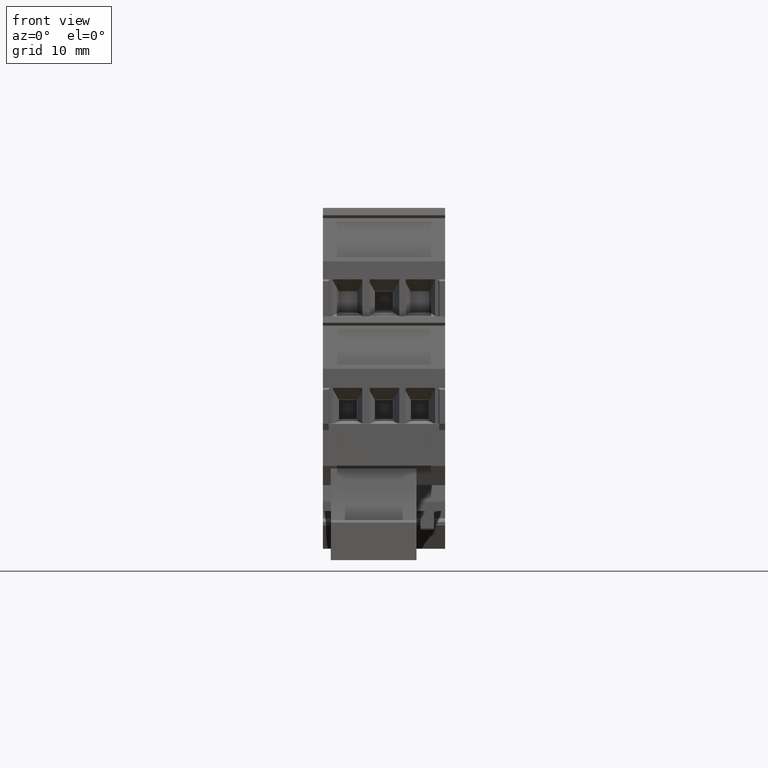
[diagram: clean part render]
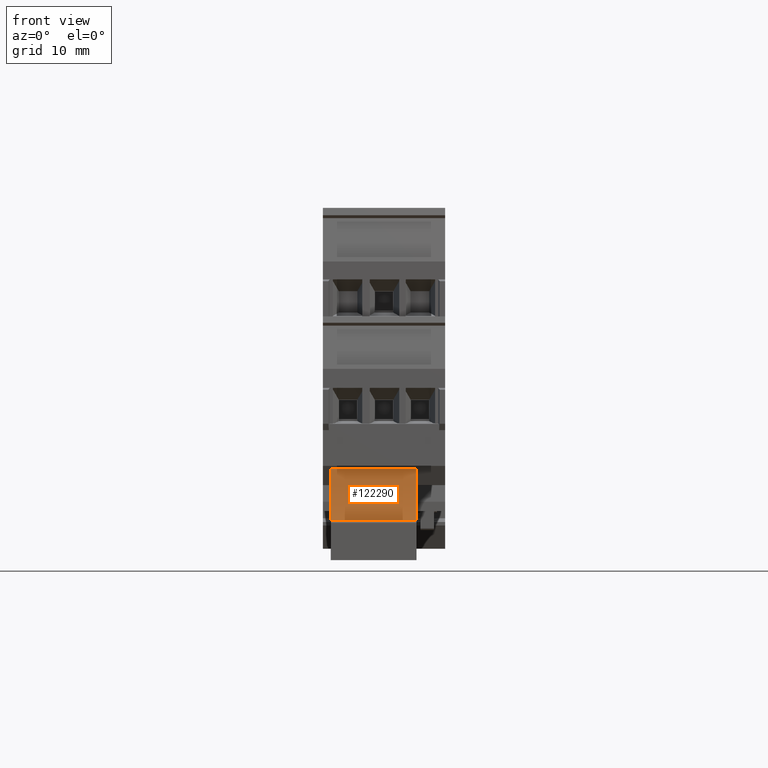
[diagram: same view with one face highlighted and labeled with its STEP entity id]
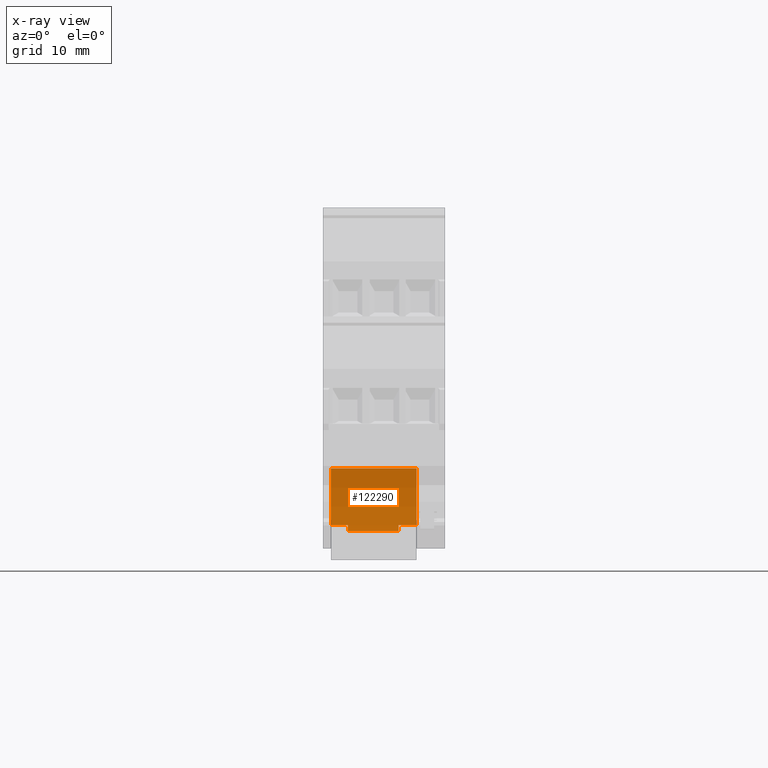
[diagram: x-ray of the same camera — body ghosted, the highlighted face saturated]
A machine part, front view. The second image highlights one B-rep face of the part: STEP entity #122290.
The next image is the same camera in x-ray: the body ghosted, the highlighted face saturated — about 0% of this face is hidden behind the body in this view.
In plain terms, the highlighted cylindrical surface (partial cylindrical patch) has radius 36.4216 mm, axis along (1, -0, 0).
Its self-contained STEP definition (entity closure, byte-faithful):
#120130=CARTESIAN_POINT('',(79.7533464536203,32.5000004563257,
-18.6383414401495));
#120140=DIRECTION('',(-0.866025403784439,-0.5,5.98477384386257E-11));
#120150=DIRECTION('',(-0.5,0.866025403784439,-1.57369833720293E-11));
#120160=AXIS2_PLACEMENT_3D('',#120130,#120140,#120150);
#120170=PLANE('',#120160);
#120320=CARTESIAN_POINT('',(78.7945118903171,34.1607506376419,
-5.08834144288964));
#120330=VERTEX_POINT('',#120320);
#120360=CARTESIAN_POINT('',(42.4807811699336,36.9623254543455,
-19.2423438435019));
#120370=DIRECTION('',(1.96178160729168E-21,4.39608926050624E-11,1.));
#120380=DIRECTION('',(0.949996010420321,-0.312262037695065,
1.3727317901887E-11));
#120390=AXIS2_PLACEMENT_3D('',#120360,#120370,#120380);
#120400=CYLINDRICAL_SURFACE('',#120390,36.42164);
#120410=CARTESIAN_POINT('',(78.7945118902532,34.1607506362684,
-17.4883414452643));
#120420=CARTESIAN_POINT('',(78.7945118902585,34.1607506363828,
-16.4550081117331));
#120430=CARTESIAN_POINT('',(78.7945118902638,34.1607506364973,
-15.4216747782019));
#120440=CARTESIAN_POINT('',(78.7945118902691,34.1607506366117,
-14.3883414446707));
#120450=CARTESIAN_POINT('',(78.7945118902745,34.1607506367262,
-13.3550081111395));
#120460=CARTESIAN_POINT('',(78.7945118902798,34.1607506368407,
-12.3216747776082));
#120470=CARTESIAN_POINT('',(78.7945118902851,34.1607506369551,
-11.288341444077));
#120480=CARTESIAN_POINT('',(78.7945118902905,34.1607506370696,
-10.2550081105458));
#120490=CARTESIAN_POINT('',(78.7945118902958,34.1607506371841,
-9.22167477701449));
#120500=CARTESIAN_POINT('',(78.7945118903011,34.1607506372985,
-8.18834144348332));
#120510=CARTESIAN_POINT('',(78.7945118903038,34.1607506373557,
-7.67167477671771));
#120520=CARTESIAN_POINT('',(78.7945118903064,34.160750637413,
-7.15500810995209));
#120530=CARTESIAN_POINT('',(78.7945118903091,34.1607506374702,
-6.63834144318647));
#120540=CARTESIAN_POINT('',(78.7945118903117,34.1607506375274,
-6.12167477642086));
#120550=CARTESIAN_POINT('',(78.7945118903144,34.1607506375847,
-5.60500810965523));
#120560=CARTESIAN_POINT('',(78.7945118903171,34.1607506376419,
-5.08834144288964));
#120570=B_SPLINE_CURVE_WITH_KNOTS('',3,(#120410,#120420,#120430,#120440,
#120450,#120460,#120470,#120480,#120490,#120500,#120510,#120520,#120530,
#120540,#120550,#120560),.UNSPECIFIED.,.F.,.F.,(4,3,3,3,3,4),(0.,
3.10000000059367,6.20000000118733,9.300000001781,10.8500000020778,
12.4000000023747),.UNSPECIFIED.);
#120580=SURFACE_CURVE('',#120570,(#120170,#120400),.CURVE_3D.);
#120590=CARTESIAN_POINT('',(78.7945118902532,34.1607506362684,
-17.4883414452643));
#120600=VERTEX_POINT('',#120590);
#120610=EDGE_CURVE('',#120600,#120330,#120580,.T.);
#121720=CARTESIAN_POINT('',(77.1962249483997,25.9453465783669,
-19.2423438430176));
#121730=DIRECTION('',(1.96178160729168E-21,4.39608926050624E-11,1.));
#121740=VECTOR('',#121730,1.);
#121750=LINE('',#121720,#121740);
#121760=CARTESIAN_POINT('',(77.1962249483997,25.9453465788748,
-7.68834144431862));
#121770=VERTEX_POINT('',#121760);
#121780=CARTESIAN_POINT('',(77.1962249483997,25.9453465789891,
-5.08834144252849));
#121790=VERTEX_POINT('',#121780);
#121800=EDGE_CURVE('',#121770,#121790,#121750,.T.);
#121810=ORIENTED_EDGE('',*,*,#121800,.T.);
#121820=CARTESIAN_POINT('',(42.4807811699336,36.9623254548535,
-7.68834144479078));
#121830=DIRECTION('',(1.96178160729168E-21,4.39608926050624E-11,1.));
#121840=DIRECTION('',(0.949996010420321,-0.312262037695065,
1.3727317901887E-11));
#121850=AXIS2_PLACEMENT_3D('',#121820,#121830,#121840);
#121860=CIRCLE('',#121850,36.42164);
#121870=CARTESIAN_POINT('',(76.903005521337,25.0607990405128,
-7.68834144427938));
#121880=VERTEX_POINT('',#121870);
#121890=EDGE_CURVE('',#121880,#121770,#121860,.T.);
#121900=ORIENTED_EDGE('',*,*,#121890,.T.);
#121910=CARTESIAN_POINT('',(76.903005521337,25.0607990405128,
-7.68834144427938));
#121920=DIRECTION('',(4.28123612420054E-13,4.42080698744088E-11,1.));
#121930=VECTOR('',#121920,1.);
#121940=LINE('',#121910,#121930);
#121950=CARTESIAN_POINT('',(76.9030055213361,25.0607990401893,
-14.9883414444423));
#121960=VERTEX_POINT('',#121950);
#121970=EDGE_CURVE('',#121960,#121880,#121940,.T.);
#121980=ORIENTED_EDGE('',*,*,#121970,.T.);
#121990=CARTESIAN_POINT('',(42.4807811699336,36.9623254545325,
-14.9883414449655));
#122000=DIRECTION('',(1.96178160729168E-21,4.39608926050624E-11,1.));
#122010=DIRECTION('',(0.949996010420321,-0.312262037695065,
1.3727317901887E-11));
#122020=AXIS2_PLACEMENT_3D('',#121990,#122000,#122010);
#122030=CIRCLE('',#122020,36.42164);
#122040=CARTESIAN_POINT('',(77.1962249483997,25.9453465785539,
-14.9883414444811));
#122050=VERTEX_POINT('',#122040);
#122060=EDGE_CURVE('',#121960,#122050,#122030,.T.);
#122070=ORIENTED_EDGE('',*,*,#122060,.F.);
#122080=CARTESIAN_POINT('',(77.1962249483997,25.945346578444,
-17.4883414449032));
#122090=VERTEX_POINT('',#122080);
#122100=EDGE_CURVE('',#122090,#122050,#121750,.T.);
#122110=ORIENTED_EDGE('',*,*,#122100,.T.);
#122120=CARTESIAN_POINT('',(42.4807811699336,36.9623254544226,
-17.4883414453875));
#122130=DIRECTION('',(1.96178160729168E-21,4.39608926050624E-11,1.));
#122140=DIRECTION('',(0.949996010420321,-0.312262037695065,
1.3727317901887E-11));
#122150=AXIS2_PLACEMENT_3D('',#122120,#122130,#122140);
#122160=CIRCLE('',#122150,36.42164);
#122170=EDGE_CURVE('',#122090,#120600,#122160,.T.);
#122180=ORIENTED_EDGE('',*,*,#122170,.F.);
#122190=ORIENTED_EDGE('',*,*,#120610,.F.);
#122200=CARTESIAN_POINT('',(42.4807811699336,36.9623254549678,
-5.0883414430128));
#122210=DIRECTION('',(1.96178160729168E-21,4.39608926050624E-11,1.));
#122220=DIRECTION('',(0.949996010420321,-0.312262037695065,
1.3727317901887E-11));
#122230=AXIS2_PLACEMENT_3D('',#122200,#122210,#122220);
#122240=CIRCLE('',#122230,36.42164);
#122250=EDGE_CURVE('',#121790,#120330,#122240,.T.);
#122260=ORIENTED_EDGE('',*,*,#122250,.T.);
#122270=EDGE_LOOP('',(#122260,#122190,#122180,#122110,#122070,#121980,
#121900,#121810));
#122280=FACE_OUTER_BOUND('',#122270,.T.);
#122290=ADVANCED_FACE('',(#122280),#120400,.F.);